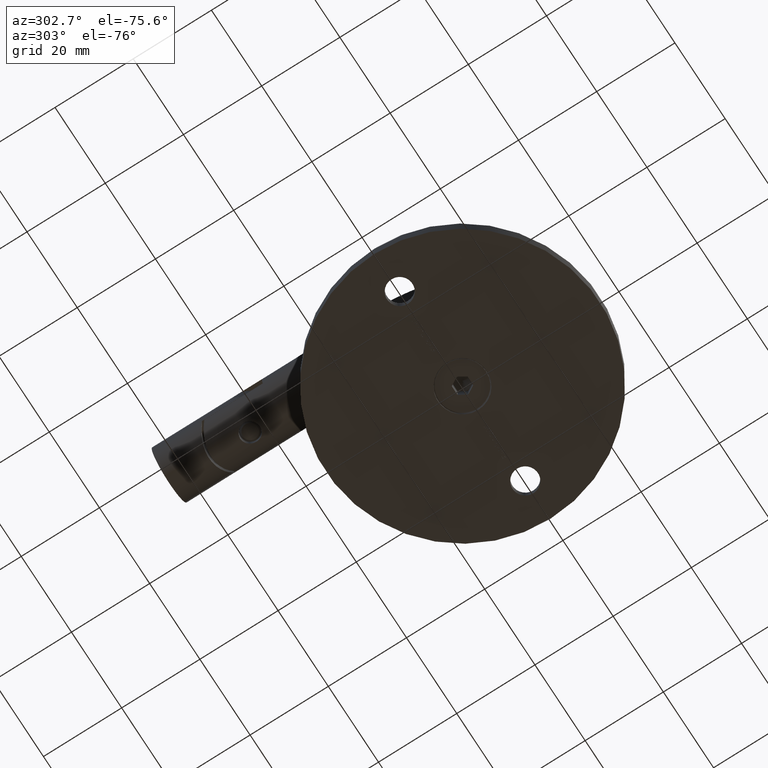
[diagram: clean part render]
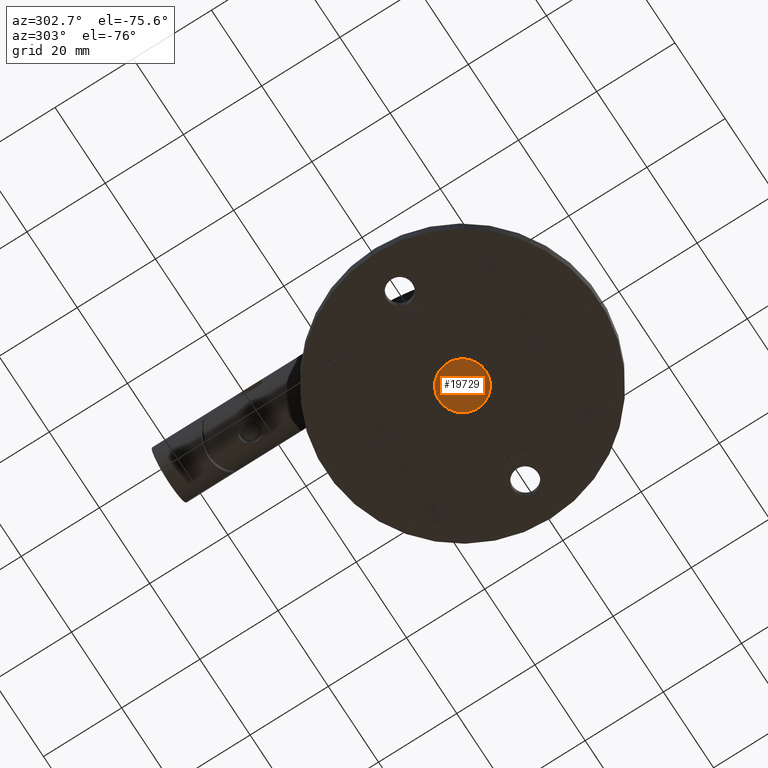
[diagram: same view with one face highlighted and labeled with its STEP entity id]
A machine part, auxiliary view. The second image highlights one B-rep face of the part: STEP entity #19729.
In plain terms, the highlighted planar face has unit normal (0, 0, -1).
Its self-contained STEP definition (entity closure, byte-faithful):
#111 = ORIENTED_EDGE ( 'NONE', *, *, #16845, .T. ) ;
#946 = CARTESIAN_POINT ( 'NONE',  ( 0.000000000000000000, 1.799711739194229786E-31, -1.469576158976824144E-15 ) ) ;
#1684 = ORIENTED_EDGE ( 'NONE', *, *, #1984, .T. ) ;
#1984 = EDGE_CURVE ( 'NONE', #9441, #14481, #12716, .T. ) ;
#2505 = LINE ( 'NONE', #18958, #3308 ) ;
#2593 = DIRECTION ( 'NONE',  ( -0.000000000000000000, 1.224646799147353454E-16, -1.000000000000000000 ) ) ;
#3060 = CARTESIAN_POINT ( 'NONE',  ( -1.154700538379252350, 1.999999999999999556, 0.000000000000000000 ) ) ;
#3148 = CIRCLE ( 'NONE', #19324, 6.000000000000000000 ) ;
#3308 = VECTOR ( 'NONE', #8854, 1000.000000000000000 ) ;
#3377 = VERTEX_POINT ( 'NONE', #6175 ) ;
#3633 = DIRECTION ( 'NONE',  ( 0.5000000000000001110, 0.8660254037844385966, 0.000000000000000000 ) ) ;
#3675 = CARTESIAN_POINT ( 'NONE',  ( -1.154700538379252350, 1.999999999999999556, 0.000000000000000000 ) ) ;
#3682 = ORIENTED_EDGE ( 'NONE', *, *, #17312, .F. ) ;
#4333 = CARTESIAN_POINT ( 'NONE',  ( 0.000000000000000000, 6.000000000000000000, 1.925929944387235853E-31 ) ) ;
#4393 = FACE_BOUND ( 'NONE', #9182, .T. ) ;
#5064 = VECTOR ( 'NONE', #18407, 1000.000000000000000 ) ;
#5255 = LINE ( 'NONE', #3675, #17840 ) ;
#6164 = DIRECTION ( 'NONE',  ( 0.000000000000000000, 1.000000000000000000, 1.224646799147353700E-16 ) ) ;
#6166 = EDGE_CURVE ( 'NONE', #17865, #8753, #20636, .T. ) ;
#6175 = CARTESIAN_POINT ( 'NONE',  ( -1.154700538379255015, -2.000000000000000000, 0.000000000000000000 ) ) ;
#6424 = CARTESIAN_POINT ( 'NONE',  ( 1.154700538379251684, 1.999999999999999112, 0.000000000000000000 ) ) ;
#7010 = CARTESIAN_POINT ( 'NONE',  ( 7.347880794884119736E-16, -6.000000000000000000, -2.204364238465236217E-15 ) ) ;
#7409 = ORIENTED_EDGE ( 'NONE', *, *, #20141, .F. ) ;
#7447 = LINE ( 'NONE', #6424, #5064 ) ;
#8542 = LINE ( 'NONE', #21699, #22189 ) ;
#8753 = VERTEX_POINT ( 'NONE', #3060 ) ;
#8854 = DIRECTION ( 'NONE',  ( -1.000000000000000000, 0.000000000000000000, 0.000000000000000000 ) ) ;
#9182 = EDGE_LOOP ( 'NONE', ( #18486, #7409, #9643, #14975, #3682, #13947 ) ) ;
#9416 = DIRECTION ( 'NONE',  ( 0.000000000000000000, 1.000000000000000000, 1.224646799147353454E-16 ) ) ;
#9441 = VERTEX_POINT ( 'NONE', #20611 ) ;
#9643 = ORIENTED_EDGE ( 'NONE', *, *, #11177, .F. ) ;
#10189 = CARTESIAN_POINT ( 'NONE',  ( 1.154700538379251684, 1.999999999999999112, 0.000000000000000000 ) ) ;
#10464 = CARTESIAN_POINT ( 'NONE',  ( -2.309401076758504701, -1.752598683377171676E-15, 0.000000000000000000 ) ) ;
#10857 = EDGE_LOOP ( 'NONE', ( #1684, #111 ) ) ;
#11177 = EDGE_CURVE ( 'NONE', #17313, #12936, #8542, .T. ) ;
#11686 = AXIS2_PLACEMENT_3D ( 'NONE', #946, #2593, #6164 ) ;
#11813 = EDGE_CURVE ( 'NONE', #12048, #17313, #7447, .T. ) ;
#12048 = VERTEX_POINT ( 'NONE', #10189 ) ;
#12673 = CARTESIAN_POINT ( 'NONE',  ( 0.000000000000000000, 1.799711739194229786E-31, -1.469576158976824144E-15 ) ) ;
#12716 = CIRCLE ( 'NONE', #11686, 6.000000000000000000 ) ;
#12825 = DIRECTION ( 'NONE',  ( -0.000000000000000000, 1.224646799147353454E-16, -1.000000000000000000 ) ) ;
#12936 = VERTEX_POINT ( 'NONE', #15354 ) ;
#13147 = AXIS2_PLACEMENT_3D ( 'NONE', #4333, #14523, #9416 ) ;
#13947 = ORIENTED_EDGE ( 'NONE', *, *, #6166, .F. ) ;
#14481 = VERTEX_POINT ( 'NONE', #7010 ) ;
#14523 = DIRECTION ( 'NONE',  ( -0.000000000000000000, 1.224646799147353454E-16, -1.000000000000000000 ) ) ;
#14539 = DIRECTION ( 'NONE',  ( 0.000000000000000000, 1.000000000000000000, 1.224646799147353700E-16 ) ) ;
#14975 = ORIENTED_EDGE ( 'NONE', *, *, #11813, .F. ) ;
#15069 = DIRECTION ( 'NONE',  ( -0.5000000000000001110, -0.8660254037844385966, -0.000000000000000000 ) ) ;
#15354 = CARTESIAN_POINT ( 'NONE',  ( 1.154700538379250574, -2.000000000000000000, -0.000000000000000000 ) ) ;
#15752 = CARTESIAN_POINT ( 'NONE',  ( -2.309401076758504701, -1.734723475976807094E-15, -7.347880794884120722E-16 ) ) ;
#16219 = DIRECTION ( 'NONE',  ( -0.4999999999999997780, 0.8660254037844388186, 0.000000000000000000 ) ) ;
#16845 = EDGE_CURVE ( 'NONE', #14481, #9441, #3148, .T. ) ;
#17312 = EDGE_CURVE ( 'NONE', #8753, #12048, #5255, .T. ) ;
#17313 = VERTEX_POINT ( 'NONE', #18990 ) ;
#17840 = VECTOR ( 'NONE', #18921, 1000.000000000000000 ) ;
#17865 = VERTEX_POINT ( 'NONE', #15752 ) ;
#17875 = PLANE ( 'NONE',  #13147 ) ;
#18237 = VECTOR ( 'NONE', #3633, 1000.000000000000114 ) ;
#18407 = DIRECTION ( 'NONE',  ( 0.4999999999999998890, -0.8660254037844387076, 0.000000000000000000 ) ) ;
#18486 = ORIENTED_EDGE ( 'NONE', *, *, #19741, .F. ) ;
#18578 = LINE ( 'NONE', #19709, #20718 ) ;
#18921 = DIRECTION ( 'NONE',  ( 1.000000000000000000, -1.877893248421448296E-16, 0.000000000000000000 ) ) ;
#18958 = CARTESIAN_POINT ( 'NONE',  ( 1.154700538379250574, -2.000000000000000000, -0.000000000000000000 ) ) ;
#18990 = CARTESIAN_POINT ( 'NONE',  ( 2.309401076758502480, 5.022240126475751519E-17, 0.000000000000000000 ) ) ;
#19324 = AXIS2_PLACEMENT_3D ( 'NONE', #12673, #12825, #14539 ) ;
#19709 = CARTESIAN_POINT ( 'NONE',  ( -1.154700538379255015, -2.000000000000000000, 0.000000000000000000 ) ) ;
#19729 = ADVANCED_FACE ( 'NONE', ( #4393, #19885 ), #17875, .T. ) ;
#19741 = EDGE_CURVE ( 'NONE', #3377, #17865, #18578, .T. ) ;
#19885 = FACE_OUTER_BOUND ( 'NONE', #10857, .T. ) ;
#20141 = EDGE_CURVE ( 'NONE', #12936, #3377, #2505, .T. ) ;
#20611 = CARTESIAN_POINT ( 'NONE',  ( 0.000000000000000000, 6.000000000000000000, -7.347880794884119736E-16 ) ) ;
#20636 = LINE ( 'NONE', #10464, #18237 ) ;
#20718 = VECTOR ( 'NONE', #16219, 1000.000000000000114 ) ;
#21699 = CARTESIAN_POINT ( 'NONE',  ( 2.309401076758502480, 5.022240126475751519E-17, 0.000000000000000000 ) ) ;
#22189 = VECTOR ( 'NONE', #15069, 1000.000000000000000 ) ;